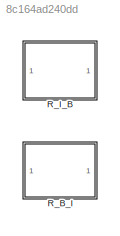
MODEL slx_8c164ad240dd
KIND library
CONFIG AbsTol = auto
CONFIG EnableMultiTasking = off
CONFIG FixedStep = auto
CONFIG MaxStep = auto
CONFIG MinStep = auto
CONFIG RelTol = 1e-3
CONFIG SampleTimeConstraint = Unconstrained
CONFIG SolverName = VariableStepAuto
CONFIG StartTime = 0.0
CONFIG StopTime = 10.0
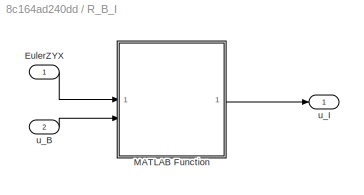
BLOCK [SubSystem] R_B_I
BLOCK [Inport] R_B_I/EulerZYX
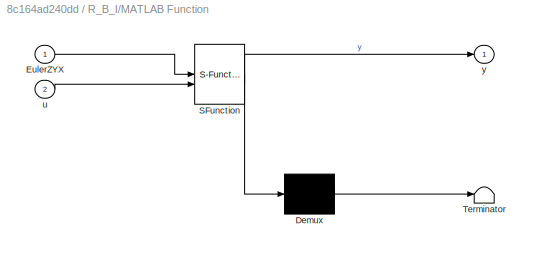
BLOCK [SubSystem] R_B_I/MATLAB Function
  ErrorFcn = Stateflow.Translate.translate
  PermitHierarchicalResolution = ExplicitOnly
  SFBlockType = MATLAB Function
  TreatAsAtomicUnit = on
BLOCK [Demux] R_B_I/MATLAB Function/ Demux 
  Outputs = 1
BLOCK [S-Function] R_B_I/MATLAB Function/ SFunction 
  EnableBusSupport = off
  FunctionName = sf_sfun
  PortCounts = [2 2]
  SFcnIsStateOwnerBlock = off
  SFunctionDeploymentMode = off
  Tag = Stateflow S-Function 1
BLOCK [Terminator] R_B_I/MATLAB Function/ Terminator 
BLOCK [Inport] R_B_I/MATLAB Function/EulerZYX
BLOCK [Inport] R_B_I/MATLAB Function/u
  Port = 2
BLOCK [Outport] R_B_I/MATLAB Function/y
BLOCK [Inport] R_B_I/u_B
  Port = 2
  PortDimensions = 3
BLOCK [Outport] R_B_I/u_I
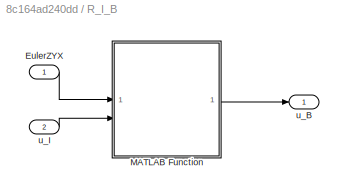
BLOCK [SubSystem] R_I_B
BLOCK [Inport] R_I_B/EulerZYX
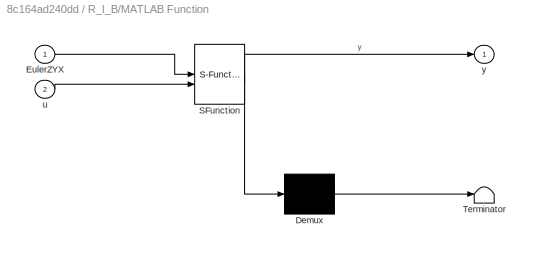
BLOCK [SubSystem] R_I_B/MATLAB Function
  ErrorFcn = Stateflow.Translate.translate
  PermitHierarchicalResolution = ExplicitOnly
  SFBlockType = MATLAB Function
  TreatAsAtomicUnit = on
BLOCK [Demux] R_I_B/MATLAB Function/ Demux 
  Outputs = 1
BLOCK [S-Function] R_I_B/MATLAB Function/ SFunction 
  EnableBusSupport = off
  FunctionName = sf_sfun
  PortCounts = [2 2]
  SFcnIsStateOwnerBlock = off
  SFunctionDeploymentMode = off
  Tag = Stateflow S-Function 2
BLOCK [Terminator] R_I_B/MATLAB Function/ Terminator 
BLOCK [Inport] R_I_B/MATLAB Function/EulerZYX
BLOCK [Inport] R_I_B/MATLAB Function/u
  Port = 2
BLOCK [Outport] R_I_B/MATLAB Function/y
BLOCK [Outport] R_I_B/u_B
BLOCK [Inport] R_I_B/u_I
  Port = 2
  PortDimensions = 3
LINE R_B_I/EulerZYX:1 -> R_B_I/MATLAB Function:1
LINE R_B_I/MATLAB Function:1 -> R_B_I/u_I:1
LINE R_B_I/u_B:1 -> R_B_I/MATLAB Function:2
LINE R_I_B/EulerZYX:1 -> R_I_B/MATLAB Function:1
LINE R_I_B/MATLAB Function:1 -> R_I_B/u_B:1
LINE R_I_B/u_I:1 -> R_I_B/MATLAB Function:2
CHART R_I_B/MATLAB Function states=1 transitions=1
  STATE_LABEL 'eML_blk_kernel()'
  STATE_LABEL 'SCRIPT:\nfunction y = R_I_B(EulerZYX, u)\n%This function creates a rotation matrix to rotate the vector U from the\n%inertial frame to the body frame. this rotation matrix is Tait-Bryan ZYX\n%intrinsic, active rotation.\n\n%Creating euler angle inputs\npsi = EulerZYX(1); %yaw about Z\ntheta = EulerZYX(2); %pitch about y\nphi   = EulerZYX(3); %roll about x\n\n%Create rotation matrix from intertial frame to bo...<+156ch>'
CHART R_B_I/MATLAB Function states=1 transitions=1
  STATE_LABEL 'eML_blk_kernel()'
  STATE_LABEL 'SCRIPT:\nfunction y = R_B_I(EulerZYX, u)\n%This function creates a rotation matrix to rotate the vector U from the\n%body frame to the inertial frame. this rotation matrix is Tait-Bryan ZYX\n%intrinsic, active rotation.\n\n%Creating euler angle inputs\npsi = EulerZYX(1); %yaw about Z\ntheta = EulerZYX(2); %pitch about y\nphi   = EulerZYX(3); %roll about x\n\n%Create rotation matrix from intertial frame to bo...<+226ch>'
CHART  states=0 transitions=0
CHART  states=0 transitions=0
